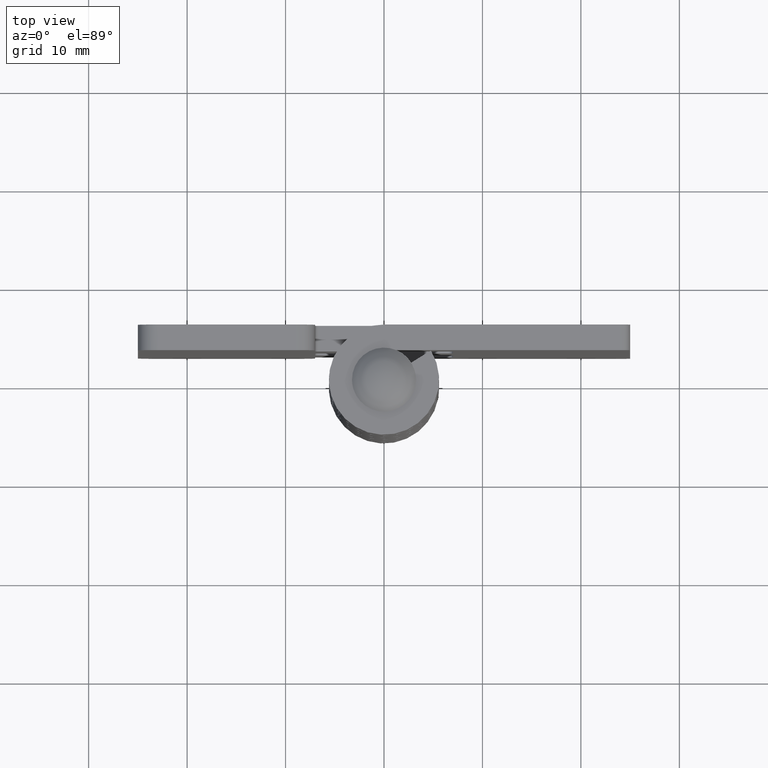
[diagram: clean part render]
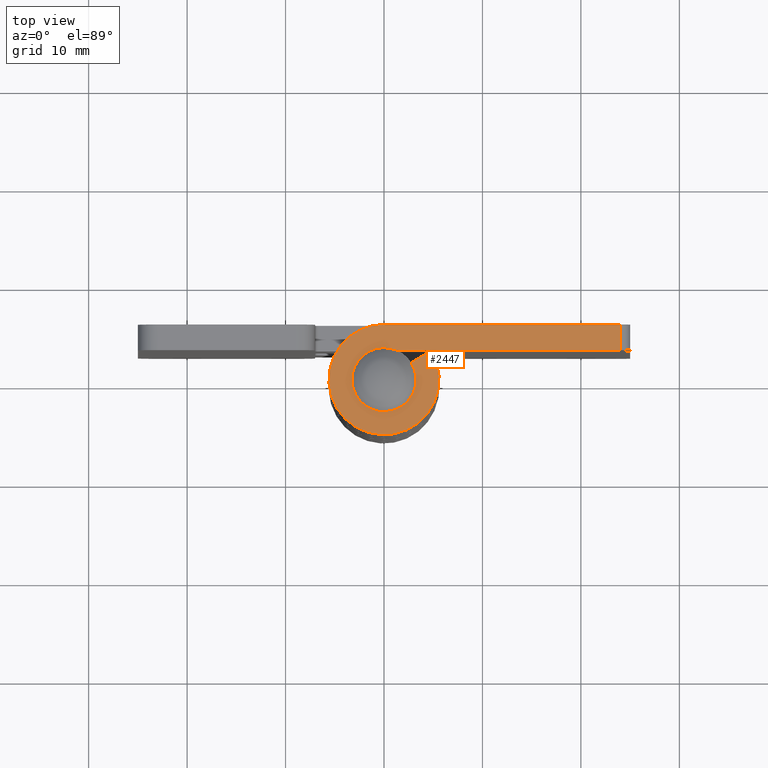
[diagram: same view with one face highlighted and labeled with its STEP entity id]
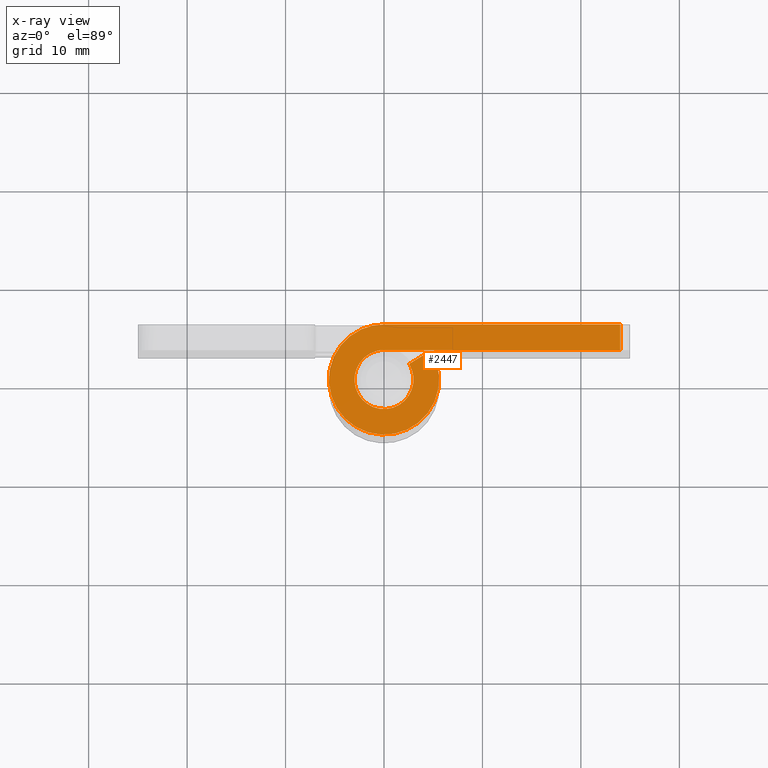
[diagram: x-ray of the same camera — body ghosted, the highlighted face saturated]
A machine part, top view. The second image highlights one B-rep face of the part: STEP entity #2447.
The next image is the same camera in x-ray: the body ghosted, the highlighted face saturated — about 0% of this face is hidden behind the body in this view.
In plain terms, the highlighted face is a freeform B-spline surface patch.
Its self-contained STEP definition (entity closure, byte-faithful):
#1388=CARTESIAN_POINT('',(2.549993679855905,1.580356362563815,51.0));
#1389=VERTEX_POINT('',#1388);
#1395=CARTESIAN_POINT('',(4.759988939062770,2.949999000000000,51.0));
#1396=VERTEX_POINT('',#1395);
#1397=CARTESIAN_POINT('',(2.549993679855905,1.580356362563815,51.0));
#1398=CARTESIAN_POINT('',(4.759988939062770,2.949999000000000,51.0));
#1399=QUASI_UNIFORM_CURVE('',1,(#1397,#1398),.UNSPECIFIED.,.F.,.U.);
#1400=EDGE_CURVE('',#1389,#1396,#1399,.T.);
#1469=CARTESIAN_POINT('',(0.0,2.999999000000000,51.0));
#1470=VERTEX_POINT('',#1469);
#1476=CARTESIAN_POINT('',(2.549993679855905,1.580356362563815,51.0));
#1477=CARTESIAN_POINT('',(2.669257573462063,1.388004251657713,51.000000000000028));
#1478=CARTESIAN_POINT('',(2.841780841192542,1.022933087231186,51.000000000000050));
#1479=CARTESIAN_POINT('',(2.967497555129041,0.511488652432188,50.999999999999901));
#1480=CARTESIAN_POINT('',(3.010049026598680,0.049618418448278,51.000000000000149));
#1481=CARTESIAN_POINT('',(2.984771803631059,-0.434877233091345,50.999999999999957));
#1482=CARTESIAN_POINT('',(2.842119840916297,-1.038470852857472,50.999999999999773));
#1483=CARTESIAN_POINT('',(2.566650180744766,-1.596553374504506,50.999999999999957));
#1484=CARTESIAN_POINT('',(2.214304160249137,-2.041721981258232,51.000000000000071));
#1485=CARTESIAN_POINT('',(1.866219638881407,-2.364115711839849,50.999999999999943));
#1486=CARTESIAN_POINT('',(1.463850369066088,-2.635154495230955,51.000000000000057));
#1487=CARTESIAN_POINT('',(0.964766925911176,-2.859865165946166,51.000000000000853));
#1488=CARTESIAN_POINT('',(0.451540395980861,-2.981491180699694,50.999999999999709));
#1489=CARTESIAN_POINT('',(-0.094204677017503,-3.013072343599732,51.000000000000661));
#1490=CARTESIAN_POINT('',(-0.700278614731632,-2.945028607657275,50.999999999999531));
#1491=CARTESIAN_POINT('',(-1.325789343771870,-2.721382158211971,51.000000000000213));
#1492=CARTESIAN_POINT('',(-1.863616434901084,-2.372847904081912,50.999999999999943));
#1493=CARTESIAN_POINT('',(-2.312763105931216,-1.946006956953580,51.000000000000220));
#1494=CARTESIAN_POINT('',(-2.669733848745371,-1.424075381320208,50.999999999999453));
#1495=CARTESIAN_POINT('',(-2.884822826747936,-0.875202065657032,51.000000000000888));
#1496=CARTESIAN_POINT('',(-2.995413720610721,-0.340032995548964,51.000000000000327));
#1497=CARTESIAN_POINT('',(-3.011620168561749,0.135420583837235,50.999999999999268));
#1498=CARTESIAN_POINT('',(-2.944647356529524,0.625766484948940,51.000000000001947));
#1499=CARTESIAN_POINT('',(-2.827857523791316,1.032352215012997,50.999999999999190));
#1500=CARTESIAN_POINT('',(-2.624392421249123,1.483492163510879,51.000000000000568));
#1501=CARTESIAN_POINT('',(-2.335203473968855,1.912176575229688,50.999999999998863));
#1502=CARTESIAN_POINT('',(-1.941498674210857,2.307126581462097,51.000000000003148));
#1503=CARTESIAN_POINT('',(-1.527343366104267,2.597881807497678,50.999999999990891));
#1504=CARTESIAN_POINT('',(-1.118044171151726,2.794321413022800,51.000000000008313));
#1505=CARTESIAN_POINT('',(-0.617219499562198,2.954014363752437,50.999999999999758));
#1506=CARTESIAN_POINT('',(-0.246906517095477,3.000059823673915,50.999999999993207));
#1507=CARTESIAN_POINT('',(0.0,2.999999000000000,51.0));
#1508=B_SPLINE_CURVE_WITH_KNOTS('',3,(#1476,#1477,#1478,#1479,#1480,#1481,#1482,#1483,#1484,#1485,#1486,#1487,#1488,#1489,#1490,#1491,#1492,#1493,#1494,#1495,#1496,#1497,#1498,#1499,#1500,#1501,#1502,#1503,#1504,#1505,#1506,#1507),.UNSPECIFIED.,.F.,.U.,(4,1,1,1,1,1,1,1,1,1,1,1,1,1,1,1,1,1,1,1,1,1,1,1,1,1,1,1,1,4),(0.000000269347623,0.678969955202007,1.203637800855029,1.573992778065703,2.067800065512895,2.654195423912293,3.425763308619532,3.919584200036043,4.351612802518119,4.845434085411368,5.370098683299400,5.987354552510878,6.419437076072589,7.005822343329614,7.808257763320669,8.394630236241131,8.919287329013578,9.660004008490979,10.277263061809521,10.678489871383039,11.295751428508179,11.696963385283031,12.159855532740220,12.561074789965179,13.178339480842419,13.703013509591610,14.227681709895990,14.690628744411161,15.060973775803649,15.801674834603810),.UNSPECIFIED.);
#1509=EDGE_CURVE('',#1389,#1470,#1508,.T.);
#1578=CARTESIAN_POINT('',(0.0,5.599999000000000,51.0));
#1579=VERTEX_POINT('',#1578);
#1580=CARTESIAN_POINT('',(4.759988939062770,2.949999000000000,51.0));
#1581=CARTESIAN_POINT('',(5.023148450542628,2.525675376188568,50.999999999999957));
#1582=CARTESIAN_POINT('',(5.355528612835171,1.782903045667234,51.000000000000298));
#1583=CARTESIAN_POINT('',(5.571241658925059,0.745313327596903,50.999999999999602));
#1584=CARTESIAN_POINT('',(5.615300754003914,-0.042555712528749,51.000000000000867));
#1585=CARTESIAN_POINT('',(5.562175476320183,-0.771743048321366,50.999999999998593));
#1586=CARTESIAN_POINT('',(5.392869145496234,-1.601495568411038,51.000000000001307));
#1587=CARTESIAN_POINT('',(5.027019525416332,-2.556468751571397,50.999999999998877));
#1588=CARTESIAN_POINT('',(4.441751926188582,-3.466122544320279,51.000000000000853));
#1589=CARTESIAN_POINT('',(3.696832082166990,-4.246762391618318,50.999999999999737));
#1590=CARTESIAN_POINT('',(2.900988136816282,-4.825544492959605,50.999999999999993));
#1591=CARTESIAN_POINT('',(2.102375946242731,-5.210044735969147,51.000000000000043));
#1592=CARTESIAN_POINT('',(1.351324530364850,-5.450508372274403,50.999999999999993));
#1593=CARTESIAN_POINT('',(0.555938809052057,-5.596318567844144,50.999999999999993));
#1594=CARTESIAN_POINT('',(-0.195685406297745,-5.612711629116260,51.000000000000007));
#1595=CARTESIAN_POINT('',(-1.017434527347030,-5.524632085218423,50.999999999999993));
#1596=CARTESIAN_POINT('',(-1.766666320062413,-5.340881739917714,51.000000000000007));
#1597=CARTESIAN_POINT('',(-2.492125419275763,-5.029729459146078,50.999999999999979));
#1598=CARTESIAN_POINT('',(-3.158125651570383,-4.645388509491645,51.000000000000028));
#1599=CARTESIAN_POINT('',(-3.844937455159843,-4.115520752764081,50.999999999999979));
#1600=CARTESIAN_POINT('',(-4.435804973119540,-3.453192792284971,51.000000000000007));
#1601=CARTESIAN_POINT('',(-4.930562734245563,-2.696872658457941,51.000000000000028));
#1602=CARTESIAN_POINT('',(-5.247691154594982,-2.014860816286321,51.0));
#1603=CARTESIAN_POINT('',(-5.502815946326399,-1.147594435117539,50.999999999999723));
#1604=CARTESIAN_POINT('',(-5.631860957714147,-0.211440227963089,51.000000000001180));
#1605=CARTESIAN_POINT('',(-5.575356188979896,0.752144729997721,51.000000000000050));
#1606=CARTESIAN_POINT('',(-5.358230841546735,1.709067626866494,51.000000000000142));
#1607=CARTESIAN_POINT('',(-5.026873454270241,2.532458317176585,50.999999999999908));
#1608=CARTESIAN_POINT('',(-4.456263425862185,3.447784015191044,51.000000000000021));
#1609=CARTESIAN_POINT('',(-3.772882998408711,4.184638007718803,51.000000000000028));
#1610=CARTESIAN_POINT('',(-3.027242143864692,4.731242147028516,50.999999999999993));
#1611=CARTESIAN_POINT('',(-2.368561702135593,5.090186510580575,51.000000000000057));
#1612=CARTESIAN_POINT('',(-1.688157526301335,5.358407631431878,50.999999999999957));
#1613=CARTESIAN_POINT('',(-0.883336755729008,5.552464354390945,50.999999999999829));
#1614=CARTESIAN_POINT('',(-0.307252391293718,5.600024012835855,51.000000000000732));
#1615=CARTESIAN_POINT('',(0.0,5.599999000000000,51.0));
#1616=B_SPLINE_CURVE_WITH_KNOTS('',3,(#1580,#1581,#1582,#1583,#1584,#1585,#1586,#1587,#1588,#1589,#1590,#1591,#1592,#1593,#1594,#1595,#1596,#1597,#1598,#1599,#1600,#1601,#1602,#1603,#1604,#1605,#1606,#1607,#1608,#1609,#1610,#1611,#1612,#1613,#1614,#1615),.UNSPECIFIED.,.F.,.U.,(4,1,1,1,1,1,1,1,1,1,1,1,1,1,1,1,1,1,1,1,1,1,1,1,1,1,1,1,1,1,1,1,1,4),(0.000000119761953,1.497862609561384,2.419627147905860,3.168562433604876,3.859891384164190,4.608827415408346,5.703439383708165,6.913237408298322,7.834988426875420,8.929575417896906,9.851346792132560,10.485067370657379,11.291619252450090,12.270992305708191,12.731891181748191,13.768882128375781,14.575431437305900,15.093872656400579,16.073247105474540,17.167863144553490,17.743967879629189,18.780956852226549,19.414675295568539,20.451656152274261,21.603861550419129,22.295151770864091,23.389770136613471,24.253915096015319,25.521354957616719,26.385509897441320,27.019229965362360,27.768175390792830,28.574709898092880,29.496464256141820),.UNSPECIFIED.);
#1617=EDGE_CURVE('',#1396,#1579,#1616,.T.);
#1998=CARTESIAN_POINT('',(24.000008000000001,5.599999000000000,51.0));
#1999=VERTEX_POINT('',#1998);
#2015=CARTESIAN_POINT('',(24.000008000000001,2.999999000000000,51.0));
#2016=VERTEX_POINT('',#2015);
#2017=CARTESIAN_POINT('',(24.000008000000001,2.999999000000000,51.0));
#2018=CARTESIAN_POINT('',(24.000008000000001,5.599999000000000,51.0));
#2019=QUASI_UNIFORM_CURVE('',1,(#2017,#2018),.UNSPECIFIED.,.F.,.U.);
#2020=EDGE_CURVE('',#2016,#1999,#2019,.T.);
#2426=CARTESIAN_POINT('',(-7.078511757080954,-6.159408422682030,51.0));
#2427=CARTESIAN_POINT('',(25.478528727730151,-6.159408422682030,51.0));
#2428=CARTESIAN_POINT('',(-7.078511757080954,6.159437729884422,51.0));
#2429=CARTESIAN_POINT('',(25.478528727730151,6.159437729884422,51.0));
#2430=B_SPLINE_SURFACE_WITH_KNOTS('',1,1,((#2426,#2428),(#2427,#2429)),.UNSPECIFIED.,.F.,.F.,.U.,(2,2),(2,2),(0.0,32.557040484811097),(0.0,12.318846152566451),.UNSPECIFIED.);
#2431=CARTESIAN_POINT('',(24.000008000000001,2.999999000000000,51.0));
#2432=CARTESIAN_POINT('',(0.0,2.999999000000000,51.0));
#2433=QUASI_UNIFORM_CURVE('',1,(#2431,#2432),.UNSPECIFIED.,.F.,.U.);
#2434=EDGE_CURVE('',#2016,#1470,#2433,.T.);
#2435=ORIENTED_EDGE('',*,*,#2434,.F.);
#2436=ORIENTED_EDGE('',*,*,#2020,.T.);
#2437=CARTESIAN_POINT('',(0.0,5.599999000000000,51.0));
#2438=CARTESIAN_POINT('',(24.000008000000001,5.599999000000000,51.0));
#2439=QUASI_UNIFORM_CURVE('',1,(#2437,#2438),.UNSPECIFIED.,.F.,.U.);
#2440=EDGE_CURVE('',#1579,#1999,#2439,.T.);
#2441=ORIENTED_EDGE('',*,*,#2440,.F.);
#2442=ORIENTED_EDGE('',*,*,#1617,.F.);
#2443=ORIENTED_EDGE('',*,*,#1400,.F.);
#2444=ORIENTED_EDGE('',*,*,#1509,.T.);
#2445=EDGE_LOOP('',(#2435,#2436,#2441,#2442,#2443,#2444));
#2446=FACE_OUTER_BOUND('',#2445,.T.);
#2447=ADVANCED_FACE('',(#2446),#2430,.T.);